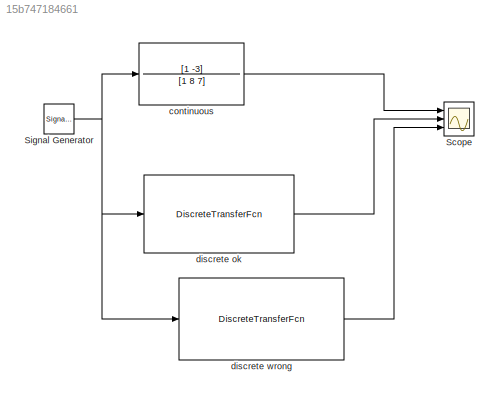
MODEL slx_15b747184661
KIND model
CONFIG AbsTol = auto
CONFIG EnableMultiTasking = off
CONFIG FixedStep = auto
CONFIG MaxStep = auto
CONFIG MinStep = auto
CONFIG RelTol = 1e-3
CONFIG SampleTimeConstraint = Unconstrained
CONFIG Solver = VariableStepAuto
CONFIG SolverName = VariableStepAuto
CONFIG StartTime = 0.0
CONFIG StopTime = 6.0
BLOCK [Scope] Scope
  Floating = off
  NumInputPorts = 3
  Ports = [3]
  ScopeSpecificationString = Simulink.scopes.TimeScopeBlockCfg('CurrentConfiguration', extmgr.ConfigurationSet(extmgr.Configuration('Core','General UI',true),extmgr.Configuration('Core','Source UI',true),extmgr.Configuration('Sources','WiredSimulink',true,'DataLogging',true,'DataLoggingSaveFormat','StructureWithTime'),extmgr.Configuration('Visuals','Time Domain',true,'SerializedDisplays',{struct('MinYLimReal','-0.19601','MaxY...<+1626ch>
BLOCK [SignalGenerator] Signal Generator
  Ports = [0, 1]
  WaveForm = sawtooth
BLOCK [TransferFcn] continuous
  Denominator = [1 8 7]
  Numerator = [1 -3]
BLOCK [DiscreteTransferFcn] discrete ok
  Denominator = [1 -1.922 0.9231]
  InputPortMap = u0
  Numerator = [0.009463 -0.009752]
  Ports = [1, 1]
  SampleTime = 1/100
BLOCK [DiscreteTransferFcn] discrete wrong
  Denominator = [1  -1.401 0.4493]
  InputPortMap = u0
  Numerator = [0.05642 -0.07695]
  Ports = [1, 1]
  SampleTime = 1/10
NET Signal Generator:1 -> continuous:1, discrete ok:1, discrete wrong:1
LINE continuous:1 -> Scope:1
LINE discrete ok:1 -> Scope:2
LINE discrete wrong:1 -> Scope:3
note: NET lines group one-source signal fan-out (src -> all destinations, sorted); 1:1 wires keep LINE
